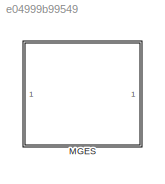
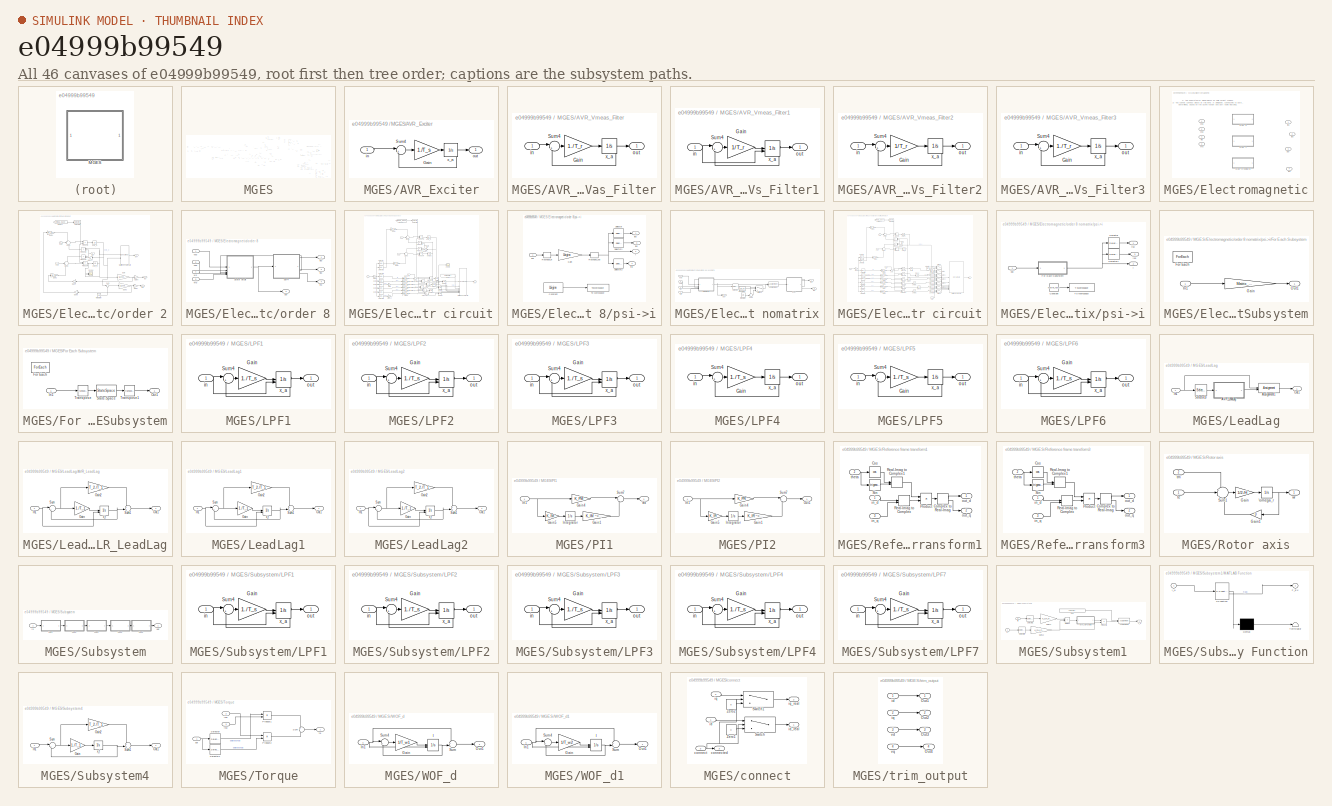
[diagram: thumbnail index - all 46 canvases of the model, root first then tree order]
MODEL slx_e04999b99549
KIND model
CONFIG AbsTol = auto
CONFIG EnableMultiTasking = off
CONFIG FixedStep = auto
CONFIG MaxStep = auto
CONFIG MinStep = auto
CONFIG RelTol = 1e-3
CONFIG SampleTimeConstraint = Unconstrained
CONFIG SolverName = VariableStepAuto
CONFIG StartTime = 0.0
CONFIG StopTime = 10.0
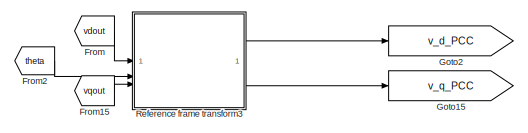
[diagram: MGES - part 1/7, top center region]
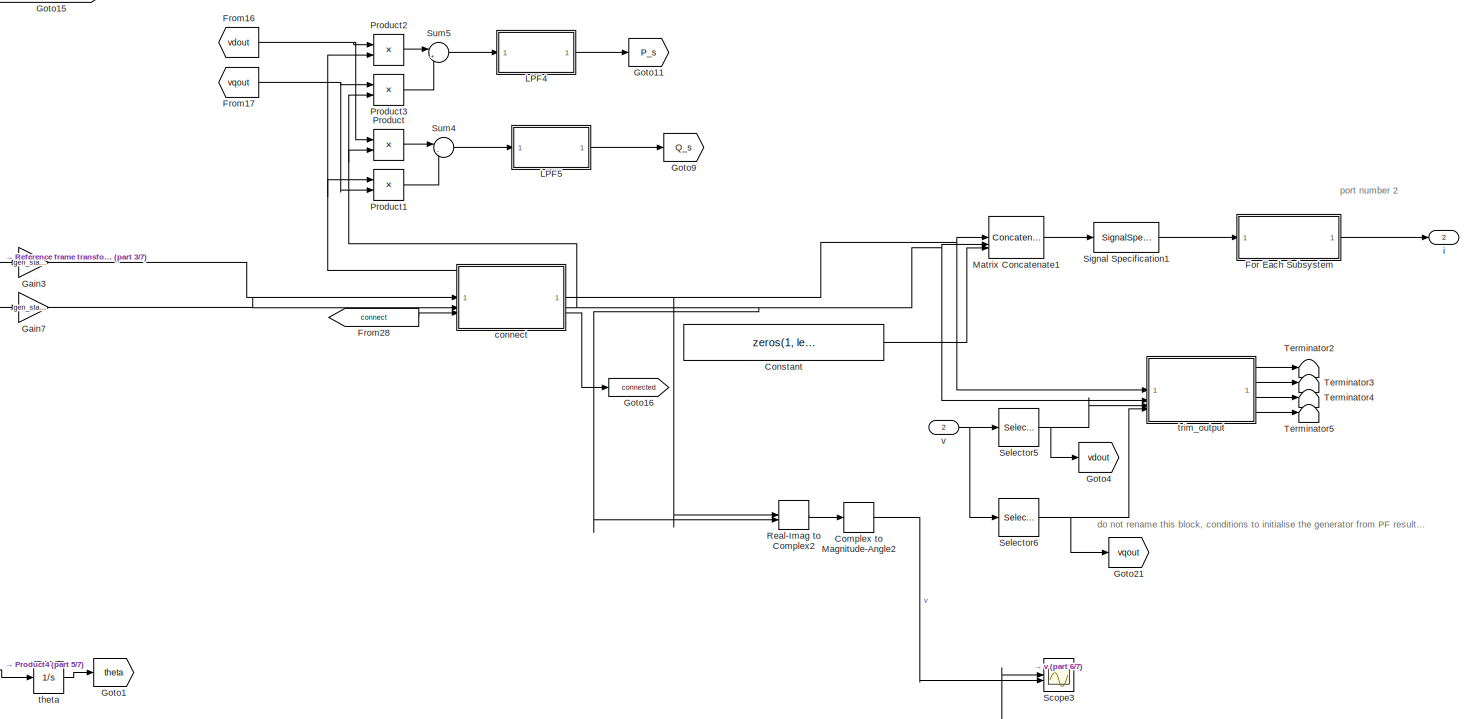
[diagram: MGES - part 2/7, middle right region]
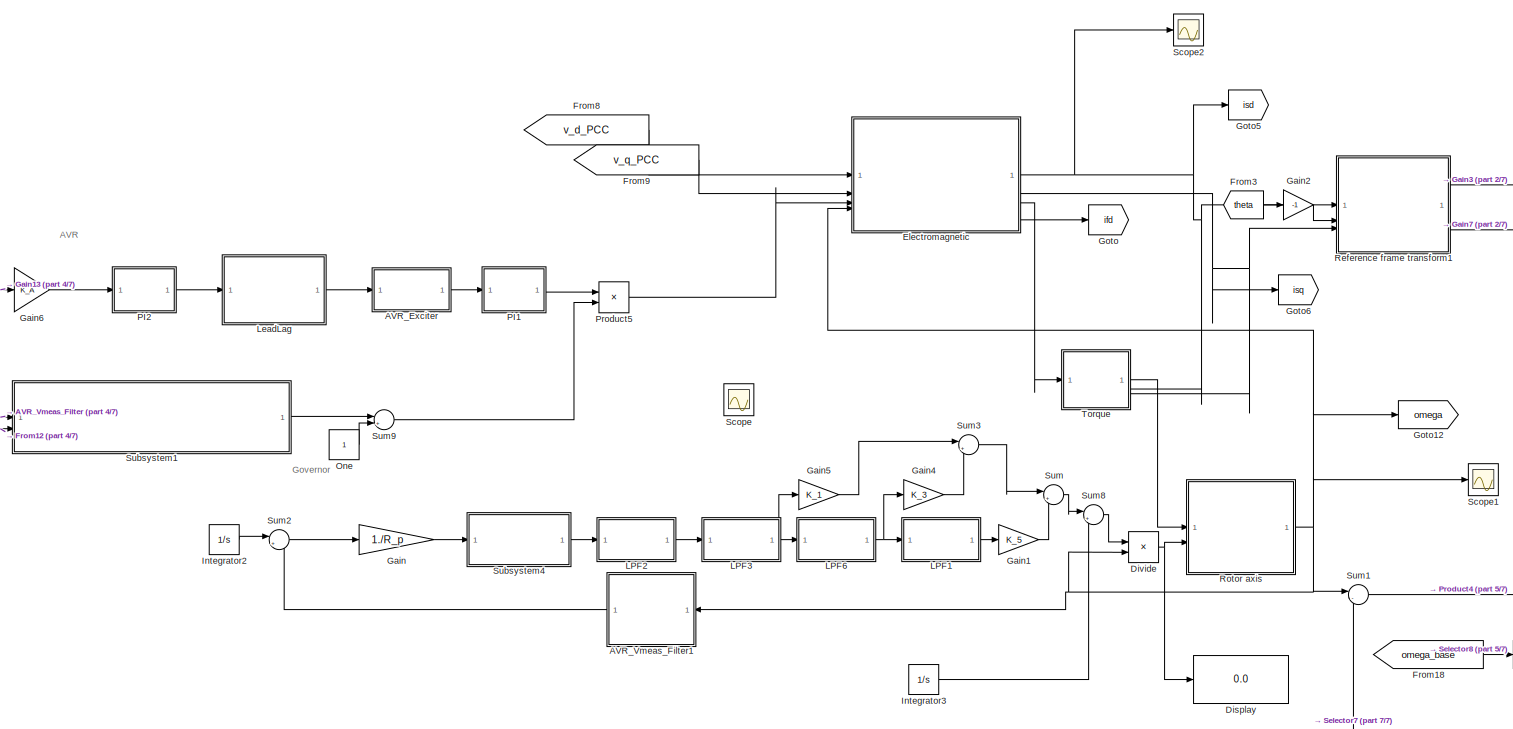
[diagram: MGES - part 3/7, central region]
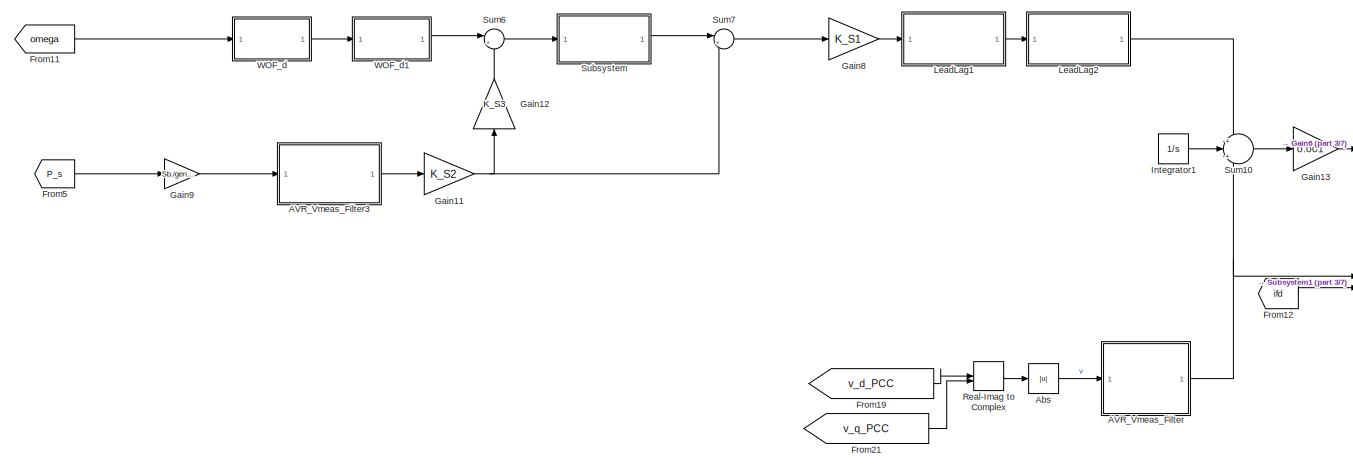
[diagram: MGES - part 4/7, middle left region]
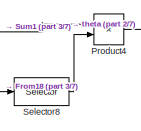
[diagram: MGES - part 5/7, central region]
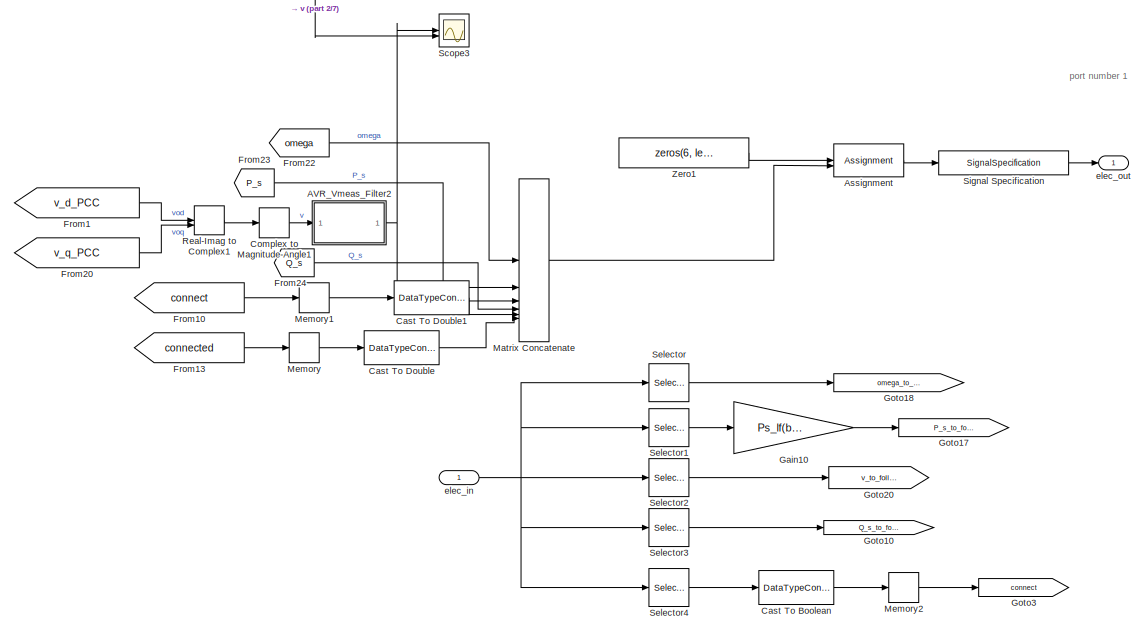
[diagram: MGES - part 6/7, bottom right region]
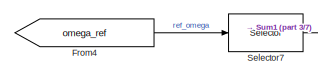
[diagram: MGES - part 7/7, bottom center region]
BLOCK [SubSystem] MGES
  Commented = on
BLOCK [SubSystem] MGES/AVR_Exciter
BLOCK [Gain] MGES/AVR_Exciter/Gain
  Gain = 1./T_s
BLOCK [Sum] MGES/AVR_Exciter/Sum4
  Inputs = |+-
BLOCK [Inport] MGES/AVR_Exciter/in
BLOCK [Outport] MGES/AVR_Exciter/out
BLOCK [Integrator] MGES/AVR_Exciter/x_a
  InitialCondition = Grid_op_MGES.op.States(1).x'
BLOCK [SubSystem] MGES/AVR_Vmeas_Filter
BLOCK [Gain] MGES/AVR_Vmeas_Filter/Gain
  Gain = 1./T_r
BLOCK [Sum] MGES/AVR_Vmeas_Filter/Sum4
  Inputs = |+-
BLOCK [Inport] MGES/AVR_Vmeas_Filter/in
BLOCK [Outport] MGES/AVR_Vmeas_Filter/out
BLOCK [Integrator] MGES/AVR_Vmeas_Filter/x_a
  InitialCondition = Grid_op_MGES.op.States(2).x'
BLOCK [SubSystem] MGES/AVR_Vmeas_Filter1
BLOCK [Gain] MGES/AVR_Vmeas_Filter1/Gain
  Gain = 1/T_r
BLOCK [Sum] MGES/AVR_Vmeas_Filter1/Sum4
  Inputs = |+-
BLOCK [Inport] MGES/AVR_Vmeas_Filter1/in
BLOCK [Outport] MGES/AVR_Vmeas_Filter1/out
BLOCK [Integrator] MGES/AVR_Vmeas_Filter1/x_a
  InitialCondition = Grid_op_MGES.op.States(3).x'
  InitialConditionSource = external
BLOCK [SubSystem] MGES/AVR_Vmeas_Filter2
  Commented = through
BLOCK [Gain] MGES/AVR_Vmeas_Filter2/Gain
  Gain = 1/T_r
BLOCK [Sum] MGES/AVR_Vmeas_Filter2/Sum4
  Inputs = |+-
BLOCK [Inport] MGES/AVR_Vmeas_Filter2/in
BLOCK [Outport] MGES/AVR_Vmeas_Filter2/out
BLOCK [Integrator] MGES/AVR_Vmeas_Filter2/x_a
  InitialCondition = Grid_op_SG.op.States(5).x'
BLOCK [SubSystem] MGES/AVR_Vmeas_Filter3
BLOCK [Gain] MGES/AVR_Vmeas_Filter3/Gain
  Gain = 1./T_r
BLOCK [Sum] MGES/AVR_Vmeas_Filter3/Sum4
  Inputs = |+-
BLOCK [Inport] MGES/AVR_Vmeas_Filter3/in
BLOCK [Outport] MGES/AVR_Vmeas_Filter3/out
BLOCK [Integrator] MGES/AVR_Vmeas_Filter3/x_a
  InitialCondition = Grid_op_MGES.op.States(4).x'
BLOCK [Abs] MGES/Abs
  SaturateOnIntegerOverflow = off
BLOCK [Assignment] MGES/Assignment
  DiagnosticForDimensions = Warning
  IndexOptions = Assign all,Index vector (dialog)
  Indices = 1,block_idx
  NumberOfDimensions = 2
  OutputSizes = 1,1
BLOCK [DataTypeConversion] MGES/Cast To Boolean
  OutDataTypeStr = boolean
  RndMeth = Floor
  SaturateOnIntegerOverflow = off
BLOCK [DataTypeConversion] MGES/Cast To Double
  OutDataTypeStr = double
  RndMeth = Floor
  SaturateOnIntegerOverflow = off
BLOCK [DataTypeConversion] MGES/Cast To Double1
  OutDataTypeStr = double
  RndMeth = Floor
  SaturateOnIntegerOverflow = off
BLOCK [ComplexToMagnitudeAngle] MGES/Complex to Magnitude-Angle1
  Output = Magnitude
BLOCK [ComplexToMagnitudeAngle] MGES/Complex to Magnitude-Angle2
  Output = Magnitude
BLOCK [Constant] MGES/Constant
  Value = zeros(1, length(block_buses))
  VectorParams1D = off
BLOCK [Display] MGES/Display
  Decimation = 1
BLOCK [Product] MGES/Divide
  Inputs = */
BLOCK [SubSystem] MGES/Electromagnetic
  LabelModeActiveChoice = order 8
  Variant = on
  VariantControlMode = label
BLOCK [Outport] MGES/Electromagnetic/ifd
  Port = 4
BLOCK [Outport] MGES/Electromagnetic/isd
BLOCK [Outport] MGES/Electromagnetic/isq
  Port = 2
BLOCK [SubSystem] MGES/Electromagnetic/order 2
  VariantControl = order 2
BLOCK [From] MGES/Electromagnetic/order 2/From14
  GotoTag = omega_base
  TagVisibility = scoped
BLOCK [Gain] MGES/Electromagnetic/order 2/Gain
  Gain = 1./Lssd_pu
BLOCK [Gain] MGES/Electromagnetic/order 2/Gain1
  Gain = Rs_pu
BLOCK [Gain] MGES/Electromagnetic/order 2/Gain17
  Gain = -1
  NameLocation = top
BLOCK [Gain] MGES/Electromagnetic/order 2/Gain2
  Gain = Rs_pu
BLOCK [Gain] MGES/Electromagnetic/order 2/Gain3
  Gain = 1./Lssd_pu
BLOCK [Gain] MGES/Electromagnetic/order 2/Gain4
BLOCK [Gain] MGES/Electromagnetic/order 2/Gain5
BLOCK [Gain] MGES/Electromagnetic/order 2/Gain6
  Gain = -1
BLOCK [Gain] MGES/Electromagnetic/order 2/Gain7
  Gain = -1
BLOCK [Integrator] MGES/Electromagnetic/order 2/Integrator
  InitialCondition = Grid_op_MGES.op.States(5).x'
BLOCK [Concatenate] MGES/Electromagnetic/order 2/Matrix Concatenate
  Mode = Multidimensional array
BLOCK [Product] MGES/Electromagnetic/order 2/Product1
BLOCK [Product] MGES/Electromagnetic/order 2/Product2
BLOCK [Product] MGES/Electromagnetic/order 2/Product3
BLOCK [Product] MGES/Electromagnetic/order 2/Product4
BLOCK [Scope] MGES/Electromagnetic/order 2/Scope
  ActiveDisplayYMaximum = 19.6557
  ActiveDisplayYMinimum = -176.647
  DataLoggingVariableName = ScopeData1
  Floating = off
  GraphicalSettings = {"GraphicalSettings":{"LegacySettings":true,"Style":{"AxesScalingProperties":{"AlignXAxis":"Center","AlignYAxis":"Center","AutoScaleXAxisLimits":true,"AxesScaling":"Manual","AxesScalingNumUpdates":10,"ScaleAxesLimitsAtStop":true,"XAxisDataRange":100,"YAxisDataRange":80},"Style":{"AxesColor":"[0 0 0]","ChannelNames":[""],"ColorOrder":"[1 0.909803921568627 0.392156862745098;0.149019607843137 0.54901...<+675ch>
  LayoutDimensionsString = [1 1]
  MultipleDisplayCache = [{"MaxYLimMag":176.647,"MaxYLimReal":19.6557,"MinYLimMag":0,"MinYLimReal":-176.647,"PlotAsMagnitudePhase":false,"ShowGrid":true,"ShowLegend":true,"Title":"%<SignalLabel>","YLabel":""}]
  NumInputPorts = 2
  ShowLegend = on
  WasSavedAsWebScope = on
  WindowPosition = [1086 283 560 420]
BLOCK [Selector] MGES/Electromagnetic/order 2/Selector2
  IndexOptions = Index vector (dialog)
  Indices = block_fref
  InputPortWidth = length(fref.ref_units)
  OutputSizes = 1
BLOCK [Sum] MGES/Electromagnetic/order 2/Sum
  Inputs = |++
BLOCK [Sum] MGES/Electromagnetic/order 2/Sum1
  InputSameDT = on
  Inputs = -|+|-
  OutDataTypeStr = Inherit: Same as first input
  SaturateOnIntegerOverflow = on
BLOCK [Sum] MGES/Electromagnetic/order 2/Sum2
  InputSameDT = on
  Inputs = -|+|-
  OutDataTypeStr = Inherit: Same as first input
  SaturateOnIntegerOverflow = on
BLOCK [Outport] MGES/Electromagnetic/order 2/isd
  VectorParamsAs1DForOutWhenUnconnected = off
BLOCK [Outport] MGES/Electromagnetic/order 2/isq
  Port = 2
  VectorParamsAs1DForOutWhenUnconnected = off
BLOCK [Outport] MGES/Electromagnetic/order 2/psi
  Port = 3
  VectorParamsAs1DForOutWhenUnconnected = off
BLOCK [Integrator] MGES/Electromagnetic/order 2/psis_d
  InitialCondition = Grid_op_MGES.op.States(6).x'
BLOCK [Integrator] MGES/Electromagnetic/order 2/psis_q
  InitialCondition = Grid_op_MGES.op.States(7).x'
BLOCK [Inport] MGES/Electromagnetic/order 2/vsd
BLOCK [Inport] MGES/Electromagnetic/order 2/vsq
  Port = 2
BLOCK [Inport] MGES/Electromagnetic/order 2/ws
  Port = 3
BLOCK [SubSystem] MGES/Electromagnetic/order 8
  VariantControl = order 8
BLOCK [SubSystem] MGES/Electromagnetic/order 8 nomatrix
  VariantControl = order 1
BLOCK [Assignment] MGES/Electromagnetic/order 8 nomatrix/Assignment
  DiagnosticForDimensions = Warning
  IndexOptions = Index vector (dialog),Assign all
  Indices = 2,1
  NumberOfDimensions = 2
  OutputSizes = 1,1
BLOCK [Constant] MGES/Electromagnetic/order 8 nomatrix/Constant
  Value = Lfd_pu
  VectorParams1D = off
BLOCK [Integrator] MGES/Electromagnetic/order 8 nomatrix/Integrator
  InitialCondition = Grid_op_MGES.op.States(5).x'
BLOCK [Selector] MGES/Electromagnetic/order 8 nomatrix/Selector
  IndexOptions = Index vector (dialog),Select all
  Indices = 2,1
  InputPortWidth = 3
  NumberOfDimensions = 2
  OutputSizes = 1,1
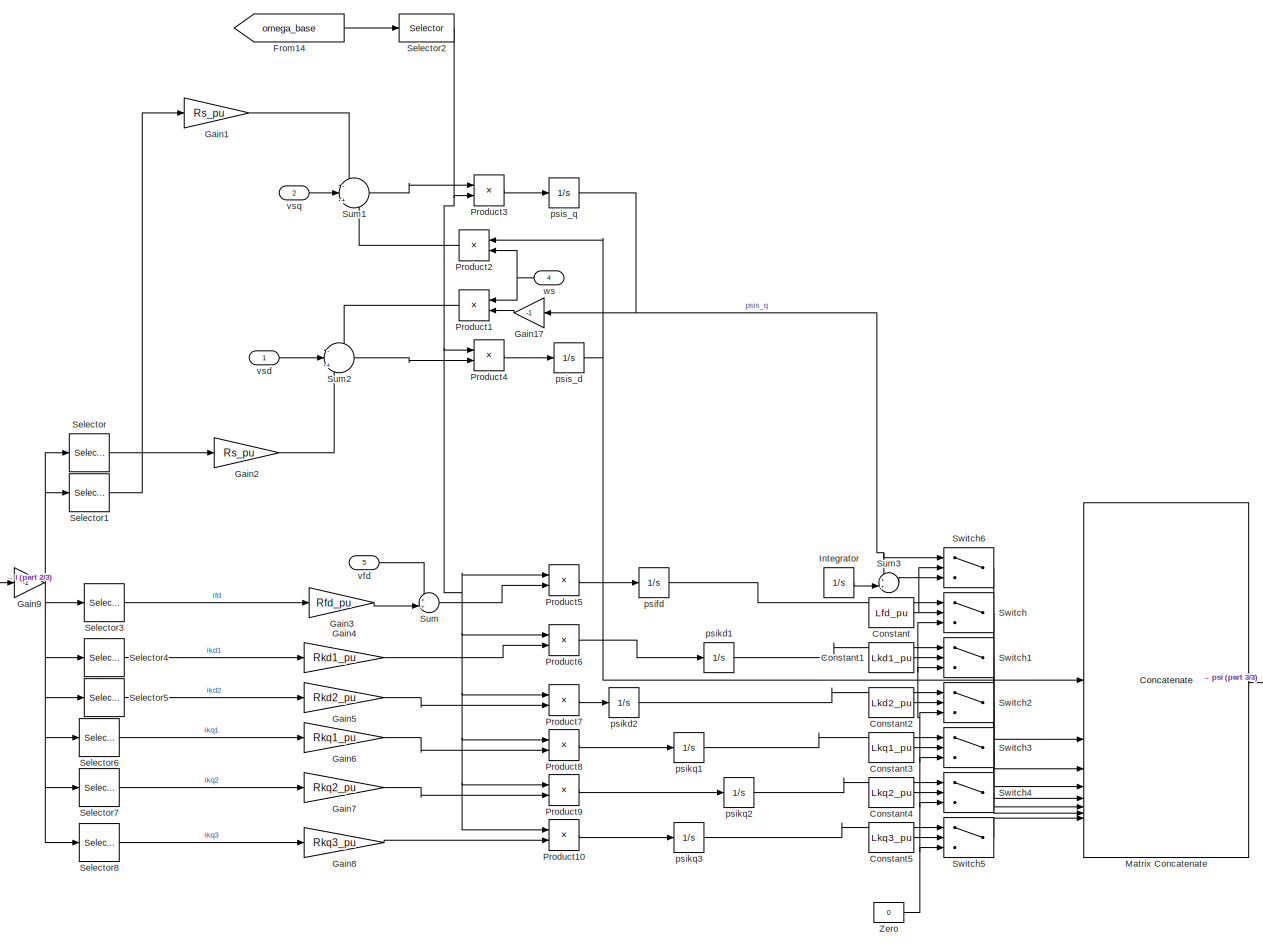
[diagram: MGES/Electromagnetic/order 8 nomatrix/Stator circuit - part 1/3, most of the canvas]
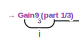
[diagram: MGES/Electromagnetic/order 8 nomatrix/Stator circuit - part 2/3, middle left region]
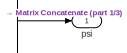
[diagram: MGES/Electromagnetic/order 8 nomatrix/Stator circuit - part 3/3, bottom right region]
BLOCK [SubSystem] MGES/Electromagnetic/order 8 nomatrix/Stator circuit
BLOCK [Constant] MGES/Electromagnetic/order 8 nomatrix/Stator circuit/Constant
  Value = Lfd_pu
  VectorParams1D = off
BLOCK [Constant] MGES/Electromagnetic/order 8 nomatrix/Stator circuit/Constant1
  Value = Lkd1_pu
  VectorParams1D = off
BLOCK [Constant] MGES/Electromagnetic/order 8 nomatrix/Stator circuit/Constant2
  Value = Lkd2_pu
  VectorParams1D = off
BLOCK [Constant] MGES/Electromagnetic/order 8 nomatrix/Stator circuit/Constant3
  Value = Lkq1_pu
  VectorParams1D = off
BLOCK [Constant] MGES/Electromagnetic/order 8 nomatrix/Stator circuit/Constant4
  Value = Lkq2_pu
  VectorParams1D = off
BLOCK [Constant] MGES/Electromagnetic/order 8 nomatrix/Stator circuit/Constant5
  Value = Lkq3_pu
  VectorParams1D = off
BLOCK [From] MGES/Electromagnetic/order 8 nomatrix/Stator circuit/From14
  GotoTag = omega_base
  TagVisibility = scoped
BLOCK [Gain] MGES/Electromagnetic/order 8 nomatrix/Stator circuit/Gain1
  Gain = Rs_pu
BLOCK [Gain] MGES/Electromagnetic/order 8 nomatrix/Stator circuit/Gain17
  Gain = -1
  NameLocation = top
BLOCK [Gain] MGES/Electromagnetic/order 8 nomatrix/Stator circuit/Gain2
  Gain = Rs_pu
BLOCK [Gain] MGES/Electromagnetic/order 8 nomatrix/Stator circuit/Gain3
  Gain = Rfd_pu
BLOCK [Gain] MGES/Electromagnetic/order 8 nomatrix/Stator circuit/Gain4
  Gain = Rkd1_pu
BLOCK [Gain] MGES/Electromagnetic/order 8 nomatrix/Stator circuit/Gain5
  Gain = Rkd2_pu
BLOCK [Gain] MGES/Electromagnetic/order 8 nomatrix/Stator circuit/Gain6
  Gain = Rkq1_pu
BLOCK [Gain] MGES/Electromagnetic/order 8 nomatrix/Stator circuit/Gain7
  Gain = Rkq2_pu
BLOCK [Gain] MGES/Electromagnetic/order 8 nomatrix/Stator circuit/Gain8
  Gain = Rkq3_pu
BLOCK [Gain] MGES/Electromagnetic/order 8 nomatrix/Stator circuit/Gain9
  Gain = -1
BLOCK [Integrator] MGES/Electromagnetic/order 8 nomatrix/Stator circuit/Integrator
  InitialCondition = Grid_op_MGES.op.States(6).x'
BLOCK [Concatenate] MGES/Electromagnetic/order 8 nomatrix/Stator circuit/Matrix Concatenate
  Mode = Multidimensional array
  NumInputs = 8
BLOCK [Product] MGES/Electromagnetic/order 8 nomatrix/Stator circuit/Product1
BLOCK [Product] MGES/Electromagnetic/order 8 nomatrix/Stator circuit/Product10
BLOCK [Product] MGES/Electromagnetic/order 8 nomatrix/Stator circuit/Product2
BLOCK [Product] MGES/Electromagnetic/order 8 nomatrix/Stator circuit/Product3
BLOCK [Product] MGES/Electromagnetic/order 8 nomatrix/Stator circuit/Product4
BLOCK [Product] MGES/Electromagnetic/order 8 nomatrix/Stator circuit/Product5
BLOCK [Product] MGES/Electromagnetic/order 8 nomatrix/Stator circuit/Product6
BLOCK [Product] MGES/Electromagnetic/order 8 nomatrix/Stator circuit/Product7
BLOCK [Product] MGES/Electromagnetic/order 8 nomatrix/Stator circuit/Product8
BLOCK [Product] MGES/Electromagnetic/order 8 nomatrix/Stator circuit/Product9
BLOCK [Selector] MGES/Electromagnetic/order 8 nomatrix/Stator circuit/Selector
  IndexOptions = Index vector (dialog),Select all
  Indices = [1],1
  InputPortWidth = 9
  NumberOfDimensions = 2
  OutputSizes = 1,1
BLOCK [Selector] MGES/Electromagnetic/order 8 nomatrix/Stator circuit/Selector1
  IndexOptions = Index vector (dialog),Select all
  Indices = [2],1
  InputPortWidth = 9
  NumberOfDimensions = 2
  OutputSizes = 1,1
BLOCK [Selector] MGES/Electromagnetic/order 8 nomatrix/Stator circuit/Selector2
  IndexOptions = Index vector (dialog)
  Indices = block_fref
  InputPortWidth = length(fref.ref_units)
  OutputSizes = 1
BLOCK [Selector] MGES/Electromagnetic/order 8 nomatrix/Stator circuit/Selector3
  IndexOptions = Index vector (dialog),Select all
  Indices = 3,1
  InputPortWidth = 9
  NumberOfDimensions = 2
  OutputSizes = 1,1
BLOCK [Selector] MGES/Electromagnetic/order 8 nomatrix/Stator circuit/Selector4
  IndexOptions = Index vector (dialog),Select all
  Indices = 4,1
  InputPortWidth = 9
  NumberOfDimensions = 2
  OutputSizes = 1,1
BLOCK [Selector] MGES/Electromagnetic/order 8 nomatrix/Stator circuit/Selector5
  IndexOptions = Index vector (dialog),Select all
  Indices = 5,1
  InputPortWidth = 9
  NumberOfDimensions = 2
  OutputSizes = 1,1
BLOCK [Selector] MGES/Electromagnetic/order 8 nomatrix/Stator circuit/Selector6
  IndexOptions = Index vector (dialog),Select all
  Indices = 6,1
  InputPortWidth = 9
  NumberOfDimensions = 2
  OutputSizes = 1,1
BLOCK [Selector] MGES/Electromagnetic/order 8 nomatrix/Stator circuit/Selector7
  IndexOptions = Index vector (dialog),Select all
  Indices = 7,1
  InputPortWidth = 9
  NumberOfDimensions = 2
  OutputSizes = 1,1
BLOCK [Selector] MGES/Electromagnetic/order 8 nomatrix/Stator circuit/Selector8
  IndexOptions = Index vector (dialog),Select all
  Indices = 8,1
  InputPortWidth = 9
  NumberOfDimensions = 2
  OutputSizes = 1,1
BLOCK [Sum] MGES/Electromagnetic/order 8 nomatrix/Stator circuit/Sum
  Inputs = ++|
BLOCK [Sum] MGES/Electromagnetic/order 8 nomatrix/Stator circuit/Sum1
  InputSameDT = on
  Inputs = -|+|-
  OutDataTypeStr = Inherit: Same as first input
  SaturateOnIntegerOverflow = on
BLOCK [Sum] MGES/Electromagnetic/order 8 nomatrix/Stator circuit/Sum2
  InputSameDT = on
  Inputs = -|+|-
  OutDataTypeStr = Inherit: Same as first input
  SaturateOnIntegerOverflow = on
BLOCK [Sum] MGES/Electromagnetic/order 8 nomatrix/Stator circuit/Sum3
  Inputs = ++|
BLOCK [Switch] MGES/Electromagnetic/order 8 nomatrix/Stator circuit/Switch
  Criteria = u2 ~= 0
  InputSameDT = off
  SaturateOnIntegerOverflow = off
BLOCK [Switch] MGES/Electromagnetic/order 8 nomatrix/Stator circuit/Switch1
  Criteria = u2 ~= 0
  InputSameDT = off
  SaturateOnIntegerOverflow = off
BLOCK [Switch] MGES/Electromagnetic/order 8 nomatrix/Stator circuit/Switch2
  Criteria = u2 ~= 0
  InputSameDT = off
  SaturateOnIntegerOverflow = off
BLOCK [Switch] MGES/Electromagnetic/order 8 nomatrix/Stator circuit/Switch3
  Criteria = u2 ~= 0
  InputSameDT = off
  SaturateOnIntegerOverflow = off
BLOCK [Switch] MGES/Electromagnetic/order 8 nomatrix/Stator circuit/Switch4
  Criteria = u2 ~= 0
  InputSameDT = off
  SaturateOnIntegerOverflow = off
BLOCK [Switch] MGES/Electromagnetic/order 8 nomatrix/Stator circuit/Switch5
  Criteria = u2 ~= 0
  InputSameDT = off
  SaturateOnIntegerOverflow = off
BLOCK [Switch] MGES/Electromagnetic/order 8 nomatrix/Stator circuit/Switch6
  Criteria = u2 ~= 0
  InputSameDT = off
  SaturateOnIntegerOverflow = off
BLOCK [Constant] MGES/Electromagnetic/order 8 nomatrix/Stator circuit/Zero
  OutDataTypeStr = Inherit: Inherit via back propagation
  Value = 0
BLOCK [Inport] MGES/Electromagnetic/order 8 nomatrix/Stator circuit/i
  Port = 3
BLOCK [Outport] MGES/Electromagnetic/order 8 nomatrix/Stator circuit/psi
  VectorParamsAs1DForOutWhenUnconnected = off
BLOCK [Integrator] MGES/Electromagnetic/order 8 nomatrix/Stator circuit/psifd
  InitialCondition = Grid_op_MGES.op.States(7).x'
BLOCK [Integrator] MGES/Electromagnetic/order 8 nomatrix/Stator circuit/psikd1
  InitialCondition = Grid_op_MGES.op.States(8).x'
BLOCK [Integrator] MGES/Electromagnetic/order 8 nomatrix/Stator circuit/psikd2
  InitialCondition = Grid_op_MGES.op.States(9).x'
BLOCK [Integrator] MGES/Electromagnetic/order 8 nomatrix/Stator circuit/psikq1
  InitialCondition = Grid_op_MGES.op.States(10).x'
BLOCK [Integrator] MGES/Electromagnetic/order 8 nomatrix/Stator circuit/psikq2
  InitialCondition = Grid_op_MGES.op.States(11).x'
BLOCK [Integrator] MGES/Electromagnetic/order 8 nomatrix/Stator circuit/psikq3
  InitialCondition = Grid_op_MGES.op.States(12).x'
BLOCK [Integrator] MGES/Electromagnetic/order 8 nomatrix/Stator circuit/psis_d
  InitialCondition = Grid_op_MGES.op.States(13).x'
BLOCK [Integrator] MGES/Electromagnetic/order 8 nomatrix/Stator circuit/psis_q
  InitialCondition = Grid_op_MGES.op.States(14).x'
BLOCK [Inport] MGES/Electromagnetic/order 8 nomatrix/Stator circuit/vfd
  Port = 5
BLOCK [Inport] MGES/Electromagnetic/order 8 nomatrix/Stator circuit/vsd
BLOCK [Inport] MGES/Electromagnetic/order 8 nomatrix/Stator circuit/vsq
  Port = 2
BLOCK [Inport] MGES/Electromagnetic/order 8 nomatrix/Stator circuit/ws
  Port = 4
BLOCK [Sum] MGES/Electromagnetic/order 8 nomatrix/Sum3
  Inputs = ++|
BLOCK [Switch] MGES/Electromagnetic/order 8 nomatrix/Switch6
  Criteria = u2 ~= 0
  InputSameDT = off
  SaturateOnIntegerOverflow = off
BLOCK [Outport] MGES/Electromagnetic/order 8 nomatrix/isd
BLOCK [Outport] MGES/Electromagnetic/order 8 nomatrix/isq
  Port = 2
BLOCK [Outport] MGES/Electromagnetic/order 8 nomatrix/psi
  Port = 3
BLOCK [SubSystem] MGES/Electromagnetic/order 8 nomatrix/psi->i
BLOCK [Constant] MGES/Electromagnetic/order 8 nomatrix/psi->i/Constant
  Value = Matrix_flux_to_i
BLOCK [SubSystem] MGES/Electromagnetic/order 8 nomatrix/psi->i/For Each Subsystem
  TreatAsAtomicUnit = on
BLOCK [ForEach] MGES/Electromagnetic/order 8 nomatrix/psi->i/For Each Subsystem/For Each
  DisableCoverage = on
  IterateSubsysMaskParameter = on
  SubsysMaskParameterIterationDimension = 3
BLOCK [Gain] MGES/Electromagnetic/order 8 nomatrix/psi->i/For Each Subsystem/Gain
  Gain = Matrix_flux_to_i
  Multiplication = Matrix(K*u)
BLOCK [Inport] MGES/Electromagnetic/order 8 nomatrix/psi->i/For Each Subsystem/In1
  Partition = on
  PartitionDimension = 2
  PartitionOffset = 0
  PartitionWidth = 1
BLOCK [Outport] MGES/Electromagnetic/order 8 nomatrix/psi->i/For Each Subsystem/Out1
  ConcatenationDimension = 2
BLOCK [Selector] MGES/Electromagnetic/order 8 nomatrix/psi->i/Selector
  IndexOptions = Index vector (dialog),Select all
  Indices = [1],1
  InputPortWidth = 9
  NumberOfDimensions = 2
  OutputSizes = 1,1
BLOCK [Selector] MGES/Electromagnetic/order 8 nomatrix/psi->i/Selector1
  IndexOptions = Index vector (dialog),Select all
  Indices = [2],1
  InputPortWidth = 9
  NumberOfDimensions = 2
  OutputSizes = 1,1
BLOCK [ToWorkspace] MGES/Electromagnetic/order 8 nomatrix/psi->i/To Workspace
  FixptAsFi = on
  MaxDataPoints = inf
  SampleTime = -1
  SaveFormat = Timeseries
  VariableName = Matrix_flux_to_i
BLOCK [Outport] MGES/Electromagnetic/order 8 nomatrix/psi->i/i
  Port = 2
  VectorParamsAs1DForOutWhenUnconnected = off
BLOCK [Outport] MGES/Electromagnetic/order 8 nomatrix/psi->i/isd
  VectorParamsAs1DForOutWhenUnconnected = off
BLOCK [Outport] MGES/Electromagnetic/order 8 nomatrix/psi->i/isq
  Port = 3
  VectorParamsAs1DForOutWhenUnconnected = off
BLOCK [Inport] MGES/Electromagnetic/order 8 nomatrix/psi->i/psi
BLOCK [Inport] MGES/Electromagnetic/order 8 nomatrix/vfd
  Port = 3
BLOCK [Inport] MGES/Electromagnetic/order 8 nomatrix/vsd
BLOCK [Inport] MGES/Electromagnetic/order 8 nomatrix/vsq
  Port = 2
BLOCK [Inport] MGES/Electromagnetic/order 8 nomatrix/ws
  Port = 4
BLOCK [SubSystem] MGES/Electromagnetic/order 8/Stator circuit
BLOCK [From] MGES/Electromagnetic/order 8/Stator circuit/From14
  GotoTag = omega_base
  TagVisibility = scoped
BLOCK [Gain] MGES/Electromagnetic/order 8/Stator circuit/Gain
  Gain = (Rkd2_pu < 1e3)
BLOCK [Gain] MGES/Electromagnetic/order 8/Stator circuit/Gain1
  Gain = Rs_pu
BLOCK [Gain] MGES/Electromagnetic/order 8/Stator circuit/Gain10
  Gain = (Rkq3_pu < 1e3)
BLOCK [Gain] MGES/Electromagnetic/order 8/Stator circuit/Gain17
  Gain = -1
  NameLocation = top
BLOCK [Gain] MGES/Electromagnetic/order 8/Stator circuit/Gain2
  Gain = Rs_pu
BLOCK [Gain] MGES/Electromagnetic/order 8/Stator circuit/Gain3
  Gain = Rfd_pu
BLOCK [Gain] MGES/Electromagnetic/order 8/Stator circuit/Gain4
  Gain = Rkd1_pu
BLOCK [Gain] MGES/Electromagnetic/order 8/Stator circuit/Gain5
  Gain = Rkd2_pu
BLOCK [Gain] MGES/Electromagnetic/order 8/Stator circuit/Gain6
  Gain = Rkq1_pu
BLOCK [Gain] MGES/Electromagnetic/order 8/Stator circuit/Gain7
  Gain = Rkq2_pu
BLOCK [Gain] MGES/Electromagnetic/order 8/Stator circuit/Gain8
  Gain = Rkq3_pu
BLOCK [Gain] MGES/Electromagnetic/order 8/Stator circuit/Gain9
  Gain = -1
BLOCK [Concatenate] MGES/Electromagnetic/order 8/Stator circuit/Matrix Concatenate
  Mode = Multidimensional array
  NumInputs = 9
BLOCK [Product] MGES/Electromagnetic/order 8/Stator circuit/Product1
BLOCK [Product] MGES/Electromagnetic/order 8/Stator circuit/Product10
BLOCK [Product] MGES/Electromagnetic/order 8/Stator circuit/Product2
BLOCK [Product] MGES/Electromagnetic/order 8/Stator circuit/Product3
BLOCK [Product] MGES/Electromagnetic/order 8/Stator circuit/Product4
BLOCK [Product] MGES/Electromagnetic/order 8/Stator circuit/Product5
BLOCK [Product] MGES/Electromagnetic/order 8/Stator circuit/Product6
BLOCK [Product] MGES/Electromagnetic/order 8/Stator circuit/Product7
BLOCK [Product] MGES/Electromagnetic/order 8/Stator circuit/Product8
BLOCK [Product] MGES/Electromagnetic/order 8/Stator circuit/Product9
BLOCK [Scope] MGES/Electromagnetic/order 8/Stator circuit/Scope
  ActiveDisplayYMaximum = 1
  ActiveDisplayYMinimum = -1
  DataLoggingVariableName = ScopeData14
  Floating = off
  GraphicalSettings = {"Style":{"BackgroundColor":[0.12941176470588237,0.12941176470588237,0.12941176470588237],"AxesColor":[0.07058823529411765,0.07058823529411765,0.07058823529411765],"LabelsColor":[0.8509803921568627,0.8509803921568627,0.8509803921568627],"PreserveColors":false,"Visible":[true,true,true],"LineStyle":["-","-","-"],"LineWidth":[1.5,1.5,1.5],"BarWidth":[0.9,0.9,0.9],"LineColor":["auto","auto","auto"],"...<+2137ch>
  MultipleDisplayCache = [{"MaxYLimMag":1,"MaxYLimReal":1,"MinYLimMag":0,"MinYLimReal":-1,"PlotAsMagnitudePhase":false,"ShowGrid":true,"ShowLegend":false,"Title":"%<SignalLabel>","YLabel":""}]
  NumInputPorts = 1
  ScopeFrameLocation = window
  WasSavedAsWebScope = on
  WindowPosition = [1096.000000,366.000000,560.000000,420.000000,]
BLOCK [Selector] MGES/Electromagnetic/order 8/Stator circuit/Selector
  IndexOptions = Index vector (dialog),Select all
  Indices = [1],1
  InputPortWidth = 9
  NumberOfDimensions = 2
  OutputSizes = 1,1
BLOCK [Selector] MGES/Electromagnetic/order 8/Stator circuit/Selector1
  IndexOptions = Index vector (dialog),Select all
  Indices = [2],1
  InputPortWidth = 9
  NumberOfDimensions = 2
  OutputSizes = 1,1
BLOCK [Selector] MGES/Electromagnetic/order 8/Stator circuit/Selector2
  IndexOptions = Index vector (dialog)
  Indices = block_fref
  InputPortWidth = length(fref.ref_units)
  OutputSizes = 1
BLOCK [Selector] MGES/Electromagnetic/order 8/Stator circuit/Selector3
  IndexOptions = Index vector (dialog),Select all
  Indices = [4],1
  InputPortWidth = 9
  NumberOfDimensions = 2
  OutputSizes = 1,1
BLOCK [Selector] MGES/Electromagnetic/order 8/Stator circuit/Selector4
  IndexOptions = Index vector (dialog),Select all
  Indices = [5],1
  InputPortWidth = 9
  NumberOfDimensions = 2
  OutputSizes = 1,1
BLOCK [Selector] MGES/Electromagnetic/order 8/Stator circuit/Selector5
  IndexOptions = Index vector (dialog),Select all
  Indices = [6],1
  InputPortWidth = 9
  NumberOfDimensions = 2
  OutputSizes = 1,1
BLOCK [Selector] MGES/Electromagnetic/order 8/Stator circuit/Selector6
  IndexOptions = Index vector (dialog),Select all
  Indices = [7],1
  InputPortWidth = 9
  NumberOfDimensions = 2
  OutputSizes = 1,1
BLOCK [Selector] MGES/Electromagnetic/order 8/Stator circuit/Selector7
  IndexOptions = Index vector (dialog),Select all
  Indices = [8],1
  InputPortWidth = 9
  NumberOfDimensions = 2
  OutputSizes = 1,1
BLOCK [Selector] MGES/Electromagnetic/order 8/Stator circuit/Selector8
  IndexOptions = Index vector (dialog),Select all
  Indices = [9],1
  InputPortWidth = 9
  NumberOfDimensions = 2
  OutputSizes = 1,1
BLOCK [Sum] MGES/Electromagnetic/order 8/Stator circuit/Sum
  Inputs = ++|
BLOCK [Sum] MGES/Electromagnetic/order 8/Stator circuit/Sum1
  InputSameDT = on
  Inputs = -|+|-
  OutDataTypeStr = Inherit: Same as first input
  SaturateOnIntegerOverflow = on
BLOCK [Sum] MGES/Electromagnetic/order 8/Stator circuit/Sum2
  InputSameDT = on
  Inputs = -|+|-
  OutDataTypeStr = Inherit: Same as first input
  SaturateOnIntegerOverflow = on
BLOCK [Constant] MGES/Electromagnetic/order 8/Stator circuit/Zero2
  OutDataTypeStr = Inherit: Inherit via back propagation
  Value = zeros(1, length(block_buses))
  VectorParams1D = off
BLOCK [Inport] MGES/Electromagnetic/order 8/Stator circuit/i
  Port = 3
BLOCK [Outport] MGES/Electromagnetic/order 8/Stator circuit/psi
  VectorParamsAs1DForOutWhenUnconnected = off
BLOCK [Integrator] MGES/Electromagnetic/order 8/Stator circuit/psifd
  InitialCondition = Grid_op_MGES.op.States(5).x'
BLOCK [Integrator] MGES/Electromagnetic/order 8/Stator circuit/psikd1
  InitialCondition = Grid_op_MGES.op.States(6).x'
BLOCK [Integrator] MGES/Electromagnetic/order 8/Stator circuit/psikd2
  InitialCondition = Grid_op_MGES.op.States(7).x'
BLOCK [Integrator] MGES/Electromagnetic/order 8/Stator circuit/psikq1
  InitialCondition = Grid_op_MGES.op.States(8).x'
BLOCK [Integrator] MGES/Electromagnetic/order 8/Stator circuit/psikq2
  InitialCondition = Grid_op_MGES.op.States(9).x'
BLOCK [Integrator] MGES/Electromagnetic/order 8/Stator circuit/psikq3
  InitialCondition = Grid_op_MGES.op.States(10).x'
BLOCK [Integrator] MGES/Electromagnetic/order 8/Stator circuit/psis_d
  InitialCondition = Grid_op_MGES.op.States(11).x'
BLOCK [Integrator] MGES/Electromagnetic/order 8/Stator circuit/psis_q
  InitialCondition = Grid_op_MGES.op.States(12).x'
BLOCK [Inport] MGES/Electromagnetic/order 8/Stator circuit/vfd
  Port = 5
BLOCK [Inport] MGES/Electromagnetic/order 8/Stator circuit/vsd
BLOCK [Inport] MGES/Electromagnetic/order 8/Stator circuit/vsq
  Port = 2
BLOCK [Inport] MGES/Electromagnetic/order 8/Stator circuit/ws
  Port = 4
BLOCK [Outport] MGES/Electromagnetic/order 8/ifd
  Port = 4
BLOCK [Outport] MGES/Electromagnetic/order 8/isd
BLOCK [Outport] MGES/Electromagnetic/order 8/isq
  Port = 2
BLOCK [Outport] MGES/Electromagnetic/order 8/psi
  Port = 3
BLOCK [SubSystem] MGES/Electromagnetic/order 8/psi->i
BLOCK [Constant] MGES/Electromagnetic/order 8/psi->i/Constant
  Value = Lbiginv
BLOCK [Gain] MGES/Electromagnetic/order 8/psi->i/Gain
  Gain = Lbiginv
  Multiplication = Matrix(K*u)
BLOCK [Reshape] MGES/Electromagnetic/order 8/psi->i/Reshape_in
  OutputDimensionality = Column vector (2-D)
BLOCK [Reshape] MGES/Electromagnetic/order 8/psi->i/Reshape_out
  OutputDimensionality = Customize
  OutputDimensions = [9, length(block_buses)]
BLOCK [Selector] MGES/Electromagnetic/order 8/psi->i/Selector
  IndexOptions = Index vector (dialog),Select all
  Indices = [1],1
  InputPortWidth = 9
  NumberOfDimensions = 2
  OutputSizes = 1,1
BLOCK [Selector] MGES/Electromagnetic/order 8/psi->i/Selector1
  IndexOptions = Index vector (dialog),Select all
  Indices = [2],1
  InputPortWidth = 9
  NumberOfDimensions = 2
  OutputSizes = 1,1
BLOCK [Selector] MGES/Electromagnetic/order 8/psi->i/Selector2
  IndexOptions = Index vector (dialog),Select all
  Indices = 4,1
  InputPortWidth = 9
  NumberOfDimensions = 2
  OutputSizes = 1,1
BLOCK [ToWorkspace] MGES/Electromagnetic/order 8/psi->i/To Workspace
  FixptAsFi = on
  MaxDataPoints = inf
  SampleTime = -1
  SaveFormat = Timeseries
  VariableName = Lbiginverse
BLOCK [Outport] MGES/Electromagnetic/order 8/psi->i/i
  Port = 2
  VectorParamsAs1DForOutWhenUnconnected = off
BLOCK [Outport] MGES/Electromagnetic/order 8/psi->i/ifd
  Port = 4
  VectorParamsAs1DForOutWhenUnconnected = off
BLOCK [Outport] MGES/Electromagnetic/order 8/psi->i/isd
  VectorParamsAs1DForOutWhenUnconnected = off
BLOCK [Outport] MGES/Electromagnetic/order 8/psi->i/isq
  Port = 3
  VectorParamsAs1DForOutWhenUnconnected = off
BLOCK [Inport] MGES/Electromagnetic/order 8/psi->i/psi
BLOCK [Inport] MGES/Electromagnetic/order 8/vfd
  Port = 3
BLOCK [Inport] MGES/Electromagnetic/order 8/vsd
BLOCK [Inport] MGES/Electromagnetic/order 8/vsq
  Port = 2
BLOCK [Inport] MGES/Electromagnetic/order 8/ws
  Port = 4
BLOCK [Outport] MGES/Electromagnetic/psi
  Port = 3
BLOCK [Inport] MGES/Electromagnetic/vfd
  Port = 3
BLOCK [Inport] MGES/Electromagnetic/vsd
BLOCK [Inport] MGES/Electromagnetic/vsq
  Port = 2
BLOCK [Inport] MGES/Electromagnetic/ws
  Port = 4
BLOCK [SubSystem] MGES/For Each Subsystem
  TreatAsAtomicUnit = on
BLOCK [ForEach] MGES/For Each Subsystem/For Each
  DisableCoverage = on
BLOCK [Inport] MGES/For Each Subsystem/In1
  Partition = on
  PartitionDimension = 1
  PartitionOffset = 0
  PartitionWidth = 1
BLOCK [Outport] MGES/For Each Subsystem/Out1
  ConcatenationDimension = 1
BLOCK [StateSpace] MGES/For Each Subsystem/State-Space
  A = []
  B = []
  C = []
  D = block_toM
  InitialCondition = 0
  ParameterTunability = Optimized
BLOCK [Math] MGES/For Each Subsystem/Transpose
  Operator = transpose
BLOCK [Math] MGES/For Each Subsystem/Transpose1
  Operator = transpose
BLOCK [From] MGES/From
  GotoTag = vdout
BLOCK [From] MGES/From1
  GotoTag = v_d_PCC
BLOCK [From] MGES/From10
  GotoTag = connect
BLOCK [From] MGES/From11
  GotoTag = omega
BLOCK [From] MGES/From12
  GotoTag = ifd
BLOCK [From] MGES/From13
  GotoTag = connected
BLOCK [From] MGES/From15
  GotoTag = vqout
BLOCK [From] MGES/From16
  GotoTag = vdout
BLOCK [From] MGES/From17
  GotoTag = vqout
BLOCK [From] MGES/From18
  GotoTag = omega_base
  TagVisibility = scoped
BLOCK [From] MGES/From19
  GotoTag = v_d_PCC
BLOCK [From] MGES/From2
  GotoTag = theta
BLOCK [From] MGES/From20
  GotoTag = v_q_PCC
BLOCK [From] MGES/From21
  GotoTag = v_q_PCC
BLOCK [From] MGES/From22
  GotoTag = omega
BLOCK [From] MGES/From23
  GotoTag = P_s
BLOCK [From] MGES/From24
  GotoTag = Q_s
BLOCK [From] MGES/From28
  GotoTag = connect
BLOCK [From] MGES/From3
  GotoTag = theta
BLOCK [From] MGES/From4
  GotoTag = omega_ref
  TagVisibility = scoped
BLOCK [From] MGES/From5
  GotoTag = P_s
BLOCK [From] MGES/From8
  GotoTag = v_d_PCC
BLOCK [From] MGES/From9
  GotoTag = v_q_PCC
BLOCK [Gain] MGES/Gain
  Gain = 1./R_p
BLOCK [Gain] MGES/Gain1
  Gain = K_5
BLOCK [Gain] MGES/Gain10
  Gain = Ps_lf(block_idx)
BLOCK [Gain] MGES/Gain11
  Gain = K_S2
BLOCK [Gain] MGES/Gain12
  Gain = K_S3
  NameLocation = right
BLOCK [Gain] MGES/Gain13
  Gain = 0.001
BLOCK [Gain] MGES/Gain2
  Gain = -1
BLOCK [Gain] MGES/Gain3
  Gain = gen_static_params.mBase(block_idx)'./Sb
BLOCK [Gain] MGES/Gain4
  Gain = K_3
  NameLocation = top
BLOCK [Gain] MGES/Gain5
  Gain = K_1
BLOCK [Gain] MGES/Gain6
  Gain = K_A
BLOCK [Gain] MGES/Gain7
  Gain = gen_static_params.mBase(block_idx)'./Sb
BLOCK [Gain] MGES/Gain8
  Gain = K_S1
BLOCK [Gain] MGES/Gain9
  Gain = Sb./gen_static_params.mBase(block_idx)'
BLOCK [Goto] MGES/Goto
  GotoTag = ifd
BLOCK [Goto] MGES/Goto1
  GotoTag = theta
BLOCK [Goto] MGES/Goto10
  GotoTag = Q_s_to_follow_own
BLOCK [Goto] MGES/Goto11
  GotoTag = P_s
BLOCK [Goto] MGES/Goto12
  GotoTag = omega
BLOCK [Goto] MGES/Goto15
  GotoTag = v_q_PCC
BLOCK [Goto] MGES/Goto16
  GotoTag = connected
BLOCK [Goto] MGES/Goto17
  GotoTag = P_s_to_follow_own
BLOCK [Goto] MGES/Goto18
  GotoTag = omega_to_follow_own
BLOCK [Goto] MGES/Goto2
  GotoTag = v_d_PCC
BLOCK [Goto] MGES/Goto20
  GotoTag = v_to_follow_own
BLOCK [Goto] MGES/Goto21
  GotoTag = vqout
BLOCK [Goto] MGES/Goto3
  GotoTag = connect
BLOCK [Goto] MGES/Goto4
  GotoTag = vdout
BLOCK [Goto] MGES/Goto5
  GotoTag = isd
BLOCK [Goto] MGES/Goto6
  GotoTag = isq
BLOCK [Goto] MGES/Goto9
  GotoTag = Q_s
BLOCK [Integrator] MGES/Integrator1
  InitialCondition = Grid_op_MGES.op.States(13).x'
BLOCK [Integrator] MGES/Integrator2
  InitialCondition = Grid_op_MGES.op.States(14).x'
BLOCK [Integrator] MGES/Integrator3
  InitialCondition = Grid_op_MGES.op.States(15).x'
BLOCK [SubSystem] MGES/LPF1
BLOCK [Gain] MGES/LPF1/Gain
  Gain = 1./T_s
BLOCK [Sum] MGES/LPF1/Sum4
  Inputs = |+-
BLOCK [Inport] MGES/LPF1/in
BLOCK [Outport] MGES/LPF1/out
BLOCK [Integrator] MGES/LPF1/x_a
  InitialCondition = Grid_op_MGES.op.States(16).x'
  InitialConditionSource = external
BLOCK [SubSystem] MGES/LPF2
BLOCK [Gain] MGES/LPF2/Gain
  Gain = 1./T_s
BLOCK [Sum] MGES/LPF2/Sum4
  Inputs = |+-
BLOCK [Inport] MGES/LPF2/in
BLOCK [Outport] MGES/LPF2/out
BLOCK [Integrator] MGES/LPF2/x_a
  InitialCondition = Grid_op_MGES.op.States(17).x'
  InitialConditionSource = external
BLOCK [SubSystem] MGES/LPF3
BLOCK [Gain] MGES/LPF3/Gain
  Gain = 1./T_s
BLOCK [Sum] MGES/LPF3/Sum4
  Inputs = |+-
BLOCK [Inport] MGES/LPF3/in
BLOCK [Outport] MGES/LPF3/out
BLOCK [Integrator] MGES/LPF3/x_a
  InitialCondition = Grid_op_MGES.op.States(18).x'
  InitialConditionSource = external
BLOCK [SubSystem] MGES/LPF4
  Commented = through
BLOCK [Gain] MGES/LPF4/Gain
  Gain = 1./T_s
BLOCK [Sum] MGES/LPF4/Sum4
  Inputs = |+-
BLOCK [Inport] MGES/LPF4/in
BLOCK [Outport] MGES/LPF4/out
BLOCK [Integrator] MGES/LPF4/x_a
  InitialCondition = Grid_op_SG.op.States(10).x'
BLOCK [SubSystem] MGES/LPF5
  Commented = through
BLOCK [Gain] MGES/LPF5/Gain
  Gain = 1./T_s
BLOCK [Sum] MGES/LPF5/Sum4
  Inputs = |+-
BLOCK [Inport] MGES/LPF5/in
BLOCK [Outport] MGES/LPF5/out
BLOCK [Integrator] MGES/LPF5/x_a
  InitialCondition = Grid_op_SG.op.States(11).x'
BLOCK [SubSystem] MGES/LPF6
BLOCK [Gain] MGES/LPF6/Gain
  Gain = 1./T_s
BLOCK [Sum] MGES/LPF6/Sum4
  Inputs = |+-
BLOCK [Inport] MGES/LPF6/in
BLOCK [Outport] MGES/LPF6/out
BLOCK [Integrator] MGES/LPF6/x_a
  InitialCondition = Grid_op_MGES.op.States(19).x'
  InitialConditionSource = external
BLOCK [SubSystem] MGES/LeadLag
BLOCK [SubSystem] MGES/LeadLag/AVR_LeadLag
BLOCK [Gain] MGES/LeadLag/AVR_LeadLag/Gain
  Gain = 1./T_1
BLOCK [Gain] MGES/LeadLag/AVR_LeadLag/Gain2
  Gain = T_2./T_1
BLOCK [Inport] MGES/LeadLag/AVR_LeadLag/In1
BLOCK [Outport] MGES/LeadLag/AVR_LeadLag/Out1
BLOCK [Sum] MGES/LeadLag/AVR_LeadLag/Sum
  Inputs = |+-
BLOCK [Sum] MGES/LeadLag/AVR_LeadLag/Sum1
  Inputs = ++|
BLOCK [Integrator] MGES/LeadLag/AVR_LeadLag/x_f
  InitialCondition = Grid_op_MGES.op.States(20).x'
  InitialConditionSource = external
BLOCK [Assignment] MGES/LeadLag/Assignment1
  DiagnosticForDimensions = Warning
  IndexOptions = Index vector (dialog)
  Indices = find(T_1~=0)
  OutputSizes = 1
BLOCK [Inport] MGES/LeadLag/In1
BLOCK [Outport] MGES/LeadLag/Out1
BLOCK [Selector] MGES/LeadLag/Selector10
  IndexOptions = Index vector (dialog)
  Indices = find(T_1~=0)
  InputPortWidth = length(block_buses)
  OutputSizes = 1
BLOCK [SubSystem] MGES/LeadLag1
BLOCK [Gain] MGES/LeadLag1/Gain
  Gain = 1./T_1
BLOCK [Gain] MGES/LeadLag1/Gain2
  Gain = T_2./T_1
BLOCK [Inport] MGES/LeadLag1/In1
BLOCK [Outport] MGES/LeadLag1/Out1
BLOCK [Sum] MGES/LeadLag1/Sum
  Inputs = |+-
BLOCK [Sum] MGES/LeadLag1/Sum1
  Inputs = ++|
BLOCK [Integrator] MGES/LeadLag1/x_f
  InitialCondition = Grid_op_MGES.op.States(21).x'
  InitialConditionSource = external
BLOCK [SubSystem] MGES/LeadLag2
BLOCK [Gain] MGES/LeadLag2/Gain
  Gain = 1./T_1
BLOCK [Gain] MGES/LeadLag2/Gain2
  Gain = T_2./T_1
BLOCK [Inport] MGES/LeadLag2/In1
BLOCK [Outport] MGES/LeadLag2/Out1
BLOCK [Sum] MGES/LeadLag2/Sum
  Inputs = |+-
BLOCK [Sum] MGES/LeadLag2/Sum1
  Inputs = ++|
BLOCK [Integrator] MGES/LeadLag2/x_f
  InitialCondition = Grid_op_MGES.op.States(22).x'
  InitialConditionSource = external
BLOCK [Concatenate] MGES/Matrix Concatenate
  Mode = Multidimensional array
  NumInputs = 6
BLOCK [Concatenate] MGES/Matrix Concatenate1
  Mode = Multidimensional array
  NumInputs = 3
BLOCK [Memory] MGES/Memory
  InitialCondition = 1
BLOCK [Memory] MGES/Memory1
  InitialCondition = 1
BLOCK [Memory] MGES/Memory2
  InitialCondition = 1
BLOCK [Constant] MGES/One
  OutDataTypeStr = Inherit: Inherit via back propagation
BLOCK [SubSystem] MGES/PI1
BLOCK [Gain] MGES/PI1/Gain1
  Gain = K_IM ~= 0
BLOCK [Gain] MGES/PI1/Gain4
  Gain = K_PM
BLOCK [Gain] MGES/PI1/Gain5
  Gain = K_IM
BLOCK [Inport] MGES/PI1/In1
BLOCK [Integrator] MGES/PI1/Integrator
  InitialCondition = Grid_op_MGES.op.States(23).x'
BLOCK [Sum] MGES/PI1/Sum7
  Inputs = |++
BLOCK [Outport] MGES/PI1/vfd
BLOCK [SubSystem] MGES/PI2
BLOCK [Gain] MGES/PI2/Gain1
  Gain = K_IR ~= 0
BLOCK [Gain] MGES/PI2/Gain4
  Gain = K_PR
BLOCK [Gain] MGES/PI2/Gain5
  Gain = K_IR
BLOCK [Inport] MGES/PI2/In1
BLOCK [Integrator] MGES/PI2/Integrator
  InitialCondition = Grid_op_MGES.op.States(24).x'
BLOCK [Outport] MGES/PI2/Out1
BLOCK [Sum] MGES/PI2/Sum7
  Inputs = |++
BLOCK [Product] MGES/Product
BLOCK [Product] MGES/Product1
BLOCK [Product] MGES/Product2
BLOCK [Product] MGES/Product3
BLOCK [Product] MGES/Product4
BLOCK [Product] MGES/Product5
BLOCK [RealImagToComplex] MGES/Real-Imag to Complex
BLOCK [RealImagToComplex] MGES/Real-Imag to Complex1
BLOCK [RealImagToComplex] MGES/Real-Imag to Complex2
BLOCK [SubSystem] MGES/Reference frame transform1
BLOCK [ComplexToRealImag] MGES/Reference frame transform1/Complex to Real-Imag
BLOCK [Trigonometry] MGES/Reference frame transform1/Cos
  Operator = cos
  SCDEnableBlockLinearizationSpecification = on
BLOCK [Product] MGES/Reference frame transform1/Product
BLOCK [RealImagToComplex] MGES/Reference frame transform1/Real-Imag to Complex
BLOCK [RealImagToComplex] MGES/Reference frame transform1/Real-Imag to Complex1
BLOCK [Trigonometry] MGES/Reference frame transform1/Sin
  SCDEnableBlockLinearizationSpecification = on
BLOCK [Inport] MGES/Reference frame transform1/in_d
BLOCK [Inport] MGES/Reference frame transform1/in_q
  Port = 3
BLOCK [Outport] MGES/Reference frame transform1/out_d
BLOCK [Outport] MGES/Reference frame transform1/out_q
  Port = 2
BLOCK [Inport] MGES/Reference frame transform1/theta
  Port = 2
BLOCK [SubSystem] MGES/Reference frame transform3
BLOCK [ComplexToRealImag] MGES/Reference frame transform3/Complex to Real-Imag
BLOCK [Trigonometry] MGES/Reference frame transform3/Cos
  Operator = cos
  SCDEnableBlockLinearizationSpecification = on
BLOCK [Product] MGES/Reference frame transform3/Product
BLOCK [RealImagToComplex] MGES/Reference frame transform3/Real-Imag to Complex
BLOCK [RealImagToComplex] MGES/Reference frame transform3/Real-Imag to Complex1
BLOCK [Trigonometry] MGES/Reference frame transform3/Sin
  SCDEnableBlockLinearizationSpecification = on
BLOCK [Inport] MGES/Reference frame transform3/in_d
BLOCK [Inport] MGES/Reference frame transform3/in_q
  Port = 3
BLOCK [Outport] MGES/Reference frame transform3/out_d
BLOCK [Outport] MGES/Reference frame transform3/out_q
  Port = 2
BLOCK [Inport] MGES/Reference frame transform3/theta
  Port = 2
BLOCK [SubSystem] MGES/Rotor axis
BLOCK [Gain] MGES/Rotor axis/Gain
  Gain = 1/2./H
BLOCK [Gain] MGES/Rotor axis/Gain1
  Gain = D
BLOCK [Sum] MGES/Rotor axis/Sum1
  InputSameDT = on
  Inputs = +|-|-
  OutDataTypeStr = Inherit: Same as first input
  SaturateOnIntegerOverflow = on
BLOCK [Integrator] MGES/Rotor axis/\omega_r
  InitialCondition = Grid_op_MGES.op.States(25).x'
  LowerSaturationLimit = 0
  UpperSaturationLimit = 2*pi
BLOCK [Inport] MGES/Rotor axis/te
BLOCK [Inport] MGES/Rotor axis/tm
  Port = 2
BLOCK [Outport] MGES/Rotor axis/wr
  VectorParamsAs1DForOutWhenUnconnected = off
BLOCK [Scope] MGES/Scope
  ActiveDisplayYMaximum = 1
  ActiveDisplayYMinimum = -1
  DataLoggingVariableName = ScopeData13
  Floating = off
  GraphicalSettings = {"Style":{"BackgroundColor":[0.12941176470588237,0.12941176470588237,0.12941176470588237],"AxesColor":[0.07058823529411765,0.07058823529411765,0.07058823529411765],"LabelsColor":[0.8509803921568627,0.8509803921568627,0.8509803921568627],"PreserveColors":false,"Visible":[true,true,true],"LineStyle":["-","-","-"],"LineWidth":[1.5,1.5,1.5],"BarWidth":[0.9,0.9,0.9],"LineColor":["auto","auto","auto"],"...<+2143ch>
  MultipleDisplayCache = [{"MaxYLimMag":1,"MaxYLimReal":1,"MinYLimMag":0,"MinYLimReal":-1,"PlotAsMagnitudePhase":false,"ShowGrid":true,"ShowLegend":false,"Title":"%<SignalLabel>","YLabel":""}]
  NumInputPorts = 1
  ScopeFrameLocation = window
  WasSavedAsWebScope = on
  WindowPosition = [667.000000,351.000000,560.000000,420.000000,]
BLOCK [Scope] MGES/Scope1
  ActiveDisplayYMaximum = 2.1702525958532117
  ActiveDisplayYMinimum = -0.058141408811601208
  DataLoggingVariableName = ScopeData3
  Floating = off
  GraphicalSettings = {"Style":{"BackgroundColor":[0.12941176470588237,0.12941176470588237,0.12941176470588237],"AxesColor":[0.07058823529411765,0.07058823529411765,0.07058823529411765],"LabelsColor":[0.8509803921568627,0.8509803921568627,0.8509803921568627],"PreserveColors":false,"Visible":[true,true,true],"LineStyle":["-","-","-"],"LineWidth":[1.5,1.5,1.5],"BarWidth":[0.9,0.9,0.9],"LineColor":["auto","auto","auto"],"...<+2261ch>
  LayoutDimensionsString = [1 1]
  MultipleDisplayCache = [{"MaxYLimMag":2.1702525958532117,"MaxYLimReal":2.1702525958532117,"MinYLimMag":0,"MinYLimReal":-0.058141408811601208,"PlotAsMagnitudePhase":false,"ShowGrid":true,"ShowLegend":false,"Title":"%<SignalLabel>","YLabel":""}]
  NumInputPorts = 1
  ScopeFrameLocation = window
  WasSavedAsWebScope = on
  WindowPosition = [1011.000000,284.000000,560.000000,420.000000,]
BLOCK [Scope] MGES/Scope2
  ActiveDisplayYMaximum = 1.3038964261892889
  ActiveDisplayYMinimum = -0.402690614368146
  DataLoggingVariableName = ScopeData9
  Floating = off
  GraphicalSettings = {"Style":{"BackgroundColor":[0.12941176470588237,0.12941176470588237,0.12941176470588237],"AxesColor":[0.07058823529411765,0.07058823529411765,0.07058823529411765],"LabelsColor":[0.8509803921568627,0.8509803921568627,0.8509803921568627],"PreserveColors":false,"Visible":[true,true,true],"LineStyle":["-","-","-"],"LineWidth":[1.5,1.5,1.5],"BarWidth":[0.9,0.9,0.9],"LineColor":["auto","auto","auto"],"...<+2294ch>
  MultipleDisplayCache = [{"MaxYLimMag":1.3038964261892889,"MaxYLimReal":1.3038964261892889,"MinYLimMag":0,"MinYLimReal":-0.402690614368146,"PlotAsMagnitudePhase":false,"ShowGrid":true,"ShowLegend":false,"Title":"%<SignalLabel>","YLabel":""}]
  NumInputPorts = 1
  ScopeFrameLocation = window
  WasSavedAsWebScope = on
  WindowPosition = [604.000000,219.000000,560.000000,420.000000,]
BLOCK [Scope] MGES/Scope3
  ActiveDisplayYMaximum = 1.9416
  ActiveDisplayYMinimum = 0.29123
  DataLoggingVariableName = ScopeData3
  Floating = off
  GraphicalSettings = {"GraphicalSettings":{"LegacySettings":true,"Style":{"AxesScalingProperties":{"AlignXAxis":"Center","AlignYAxis":"Center","AutoScaleXAxisLimits":true,"AxesScaling":"Manual","AxesScalingNumUpdates":10,"ScaleAxesLimitsAtStop":true,"XAxisDataRange":100,"YAxisDataRange":80},"Style":{"AxesColor":"[0 0 0]","ChannelNames":[""],"ColorOrder":"[1 0.909803921568627 0.392156862745098;0.149019607843137 0.54901...<+675ch>
  LayoutDimensionsString = [1 1]
  MultipleDisplayCache = [{"MaxYLimMag":1.9416,"MaxYLimReal":1.9416,"MinYLimMag":0.29123,"MinYLimReal":0.29123,"PlotAsMagnitudePhase":false,"ShowGrid":true,"ShowLegend":false,"Title":"%<SignalLabel>","YLabel":""}]
  NumInputPorts = 2
  WasSavedAsWebScope = on
  WindowPosition = [705 226 560 420]
BLOCK [Selector] MGES/Selector
  IndexOptions = Index vector (dialog),Index vector (dialog)
  Indices = 1,block_idx
  InputPortWidth = 3
  NumberOfDimensions = 2
  OutputSizes = 1,1
BLOCK [Selector] MGES/Selector1
  IndexOptions = Index vector (dialog),Index vector (dialog)
  Indices = 2,block_idx
  InputPortWidth = 3
  NumberOfDimensions = 2
  OutputSizes = 1,1
BLOCK [Selector] MGES/Selector2
  IndexOptions = Index vector (dialog),Index vector (dialog)
  Indices = 3,block_idx
  InputPortWidth = 3
  NumberOfDimensions = 2
  OutputSizes = 1,1
BLOCK [Selector] MGES/Selector3
  IndexOptions = Index vector (dialog),Index vector (dialog)
  Indices = 4,block_idx
  InputPortWidth = 3
  NumberOfDimensions = 2
  OutputSizes = 1,1
BLOCK [Selector] MGES/Selector4
  IndexOptions = Index vector (dialog),Index vector (dialog)
  Indices = 5,block_idx
  InputPortWidth = 3
  NumberOfDimensions = 2
  OutputSizes = 1,1
BLOCK [Selector] MGES/Selector5
  IndexOptions = Index vector (dialog),Index vector (dialog)
  Indices = 1,block_buses
  InputPortWidth = 3
  NumberOfDimensions = 2
  OutputSizes = 1,1
BLOCK [Selector] MGES/Selector6
  IndexOptions = Index vector (dialog),Index vector (dialog)
  Indices = 2,block_buses
  InputPortWidth = 3
  NumberOfDimensions = 2
  OutputSizes = 1,1
BLOCK [Selector] MGES/Selector7
  IndexOptions = Index vector (dialog)
  Indices = block_fref
  InputPortWidth = length(fref.ref_units)
  OutputSizes = 1
BLOCK [Selector] MGES/Selector8
  IndexOptions = Index vector (dialog)
  Indices = block_fref
  InputPortWidth = length(fref.ref_units)
  OutputSizes = 1
BLOCK [SignalSpecification] MGES/Signal Specification
  Dimensions = [6 length(buses_lf)]
BLOCK [SignalSpecification] MGES/Signal Specification1
  Dimensions = [3 length(block_buses)]
BLOCK [SubSystem] MGES/Subsystem
BLOCK [SubSystem] MGES/Subsystem/LPF1
BLOCK [Gain] MGES/Subsystem/LPF1/Gain
  Gain = 1./T_s
BLOCK [Sum] MGES/Subsystem/LPF1/Sum4
  Inputs = |+-
BLOCK [Inport] MGES/Subsystem/LPF1/in
BLOCK [Outport] MGES/Subsystem/LPF1/out
BLOCK [Integrator] MGES/Subsystem/LPF1/x_a
  InitialCondition = Grid_op_MGES.op.States(26).x'
  InitialConditionSource = external
BLOCK [SubSystem] MGES/Subsystem/LPF2
BLOCK [Gain] MGES/Subsystem/LPF2/Gain
  Gain = 1./T_s
BLOCK [Sum] MGES/Subsystem/LPF2/Sum4
  Inputs = |+-
BLOCK [Inport] MGES/Subsystem/LPF2/in
BLOCK [Outport] MGES/Subsystem/LPF2/out
BLOCK [Integrator] MGES/Subsystem/LPF2/x_a
  InitialCondition = Grid_op_MGES.op.States(27).x'
  InitialConditionSource = external
BLOCK [SubSystem] MGES/Subsystem/LPF3
BLOCK [Gain] MGES/Subsystem/LPF3/Gain
  Gain = 1./T_s
BLOCK [Sum] MGES/Subsystem/LPF3/Sum4
  Inputs = |+-
BLOCK [Inport] MGES/Subsystem/LPF3/in
BLOCK [Outport] MGES/Subsystem/LPF3/out
BLOCK [Integrator] MGES/Subsystem/LPF3/x_a
  InitialCondition = Grid_op_MGES.op.States(28).x'
  InitialConditionSource = external
BLOCK [SubSystem] MGES/Subsystem/LPF4
BLOCK [Gain] MGES/Subsystem/LPF4/Gain
  Gain = 1./T_s
BLOCK [Sum] MGES/Subsystem/LPF4/Sum4
  Inputs = |+-
BLOCK [Inport] MGES/Subsystem/LPF4/in
BLOCK [Outport] MGES/Subsystem/LPF4/out
BLOCK [Integrator] MGES/Subsystem/LPF4/x_a
  InitialCondition = Grid_op_MGES.op.States(29).x'
  InitialConditionSource = external
BLOCK [SubSystem] MGES/Subsystem/LPF7
BLOCK [Gain] MGES/Subsystem/LPF7/Gain
  Gain = 1./T_s
BLOCK [Sum] MGES/Subsystem/LPF7/Sum4
  Inputs = |+-
BLOCK [Inport] MGES/Subsystem/LPF7/in
BLOCK [Outport] MGES/Subsystem/LPF7/out
BLOCK [Integrator] MGES/Subsystem/LPF7/x_a
  InitialCondition = Grid_op_MGES.op.States(30).x'
  InitialConditionSource = external
BLOCK [Inport] MGES/Subsystem/in
BLOCK [Outport] MGES/Subsystem/out
BLOCK [SubSystem] MGES/Subsystem1
  Commented = on
BLOCK [Assignment] MGES/Subsystem1/Assignment1
  DiagnosticForDimensions = Warning
  IndexOptions = Index vector (dialog)
  Indices = find(K_P~=0)
  OutputSizes = 1
BLOCK [Product] MGES/Subsystem1/Divide1
  Inputs = */
BLOCK [Gain] MGES/Subsystem1/Gain11
  Gain = K_C(K_P~=0)
BLOCK [Gain] MGES/Subsystem1/Gain12
  Gain = K_P(K_P~=0)
BLOCK [SubSystem] MGES/Subsystem1/MATLAB Function
  ErrorFcn = Stateflow.Translate.translate
  PermitHierarchicalResolution = ExplicitOnly
  SFBlockType = MATLAB Function
  TreatAsAtomicUnit = on
BLOCK [Demux] MGES/Subsystem1/MATLAB Function/ Demux 
  Outputs = 1
BLOCK [S-Function] MGES/Subsystem1/MATLAB Function/ SFunction 
  EnableBusSupport = off
  FunctionName = sf_sfun
  PortCounts = [1 2]
  SFcnIsStateOwnerBlock = off
  SFunctionDeploymentMode = off
  Tag = Stateflow S-Function 7
BLOCK [Terminator] MGES/Subsystem1/MATLAB Function/ Terminator 
BLOCK [Outport] MGES/Subsystem1/MATLAB Function/F_EX
BLOCK [Inport] MGES/Subsystem1/MATLAB Function/I_N
BLOCK [Constant] MGES/Subsystem1/One
  OutDataTypeStr = Inherit: Inherit via back propagation
  Value = zeros(1, length(block_buses))
  VectorParams1D = off
BLOCK [Product] MGES/Subsystem1/Product5
BLOCK [Selector] MGES/Subsystem1/Selector1
  IndexOptions = Index vector (dialog)
  Indices = find(K_P~=0)
  InputPortWidth = length(block_buses)
  OutputSizes = 1
BLOCK [Selector] MGES/Subsystem1/Selector9
  IndexOptions = Index vector (dialog)
  Indices = find(K_P~=0)
  InputPortWidth = length(block_buses)
  OutputSizes = 1
BLOCK [Outport] MGES/Subsystem1/V_B
BLOCK [Inport] MGES/Subsystem1/ifd
  Port = 2
BLOCK [Inport] MGES/Subsystem1/vt
BLOCK [SubSystem] MGES/Subsystem4
  Commented = through
BLOCK [Gain] MGES/Subsystem4/Gain
  Gain = 1./T_1
BLOCK [Gain] MGES/Subsystem4/Gain2
  Gain = T_2./T_1
BLOCK [Inport] MGES/Subsystem4/In1
BLOCK [Outport] MGES/Subsystem4/Out1
BLOCK [Sum] MGES/Subsystem4/Sum
  Inputs = |+-
BLOCK [Sum] MGES/Subsystem4/Sum1
  Inputs = ++|
BLOCK [Integrator] MGES/Subsystem4/x_f
  InitialCondition = Grid_op_MGES.op.States(21).x'
BLOCK [Sum] MGES/Sum
  Inputs = |++
BLOCK [Sum] MGES/Sum1
  Inputs = |-+
BLOCK [Sum] MGES/Sum10
  Inputs = +|+|-
BLOCK [Sum] MGES/Sum2
  Inputs = |+-
BLOCK [Sum] MGES/Sum3
  Inputs = |++
BLOCK [Sum] MGES/Sum4
  Inputs = |-+
BLOCK [Sum] MGES/Sum5
  Inputs = |++
BLOCK [Sum] MGES/Sum6
  Inputs = |++
BLOCK [Sum] MGES/Sum7
  Inputs = |+-
BLOCK [Sum] MGES/Sum8
  Inputs = |++
BLOCK [Sum] MGES/Sum9
  Inputs = |++
BLOCK [Terminator] MGES/Terminator2
BLOCK [Terminator] MGES/Terminator3
BLOCK [Terminator] MGES/Terminator4
BLOCK [Terminator] MGES/Terminator5
BLOCK [SubSystem] MGES/Torque
  PortSchema = {"entries":[{"content":{"sides":[{"content":{"connectorIds":["In1"]},"type":"ConnectorPlacement.EquallySpacedRectSide","uuid":"b7abd3bc-22dd-4669-aa40-98bc76884565"},{"content":{"connectorIds":["In2","In3","Out1"],"side":"RIGHT"},"type":"ConnectorPlacement.EquallySpacedRectSide","uuid":"e9abb552-b46d-48ed-aa1f-0e9dac604fea"},{"content":{"connectorIds":[],"side":"TOP"},"type":"ConnectorPlacement.Eq...<+252ch>
BLOCK [Product] MGES/Torque/Product1
BLOCK [Product] MGES/Torque/Product2
BLOCK [Selector] MGES/Torque/Selector
  IndexOptions = Index vector (dialog),Select all
  Indices = [1],1
  InputPortWidth = 9
  NumberOfDimensions = 2
  OutputSizes = 1,1
BLOCK [Selector] MGES/Torque/Selector1
  IndexOptions = Index vector (dialog),Select all
  Indices = [2],1
  InputPortWidth = 9
  NumberOfDimensions = 2
  OutputSizes = 1,1
BLOCK [Sum] MGES/Torque/Sum
  Inputs = +||-
BLOCK [Inport] MGES/Torque/isd
  Port = 2
BLOCK [Inport] MGES/Torque/isq
  Port = 3
BLOCK [Inport] MGES/Torque/psi
BLOCK [Outport] MGES/Torque/te
  VectorParamsAs1DForOutWhenUnconnected = off
BLOCK [SubSystem] MGES/WOF_d
BLOCK [Gain] MGES/WOF_d/Gain
  Gain = 1/T_w1
BLOCK [Integrator] MGES/WOF_d/I
  InitialCondition = Grid_op_MGES.op.States(31).x'
  InitialConditionSource = external
BLOCK [Inport] MGES/WOF_d/In1
BLOCK [Outport] MGES/WOF_d/Out1
BLOCK [Sum] MGES/WOF_d/Sum
  Inputs = +-|
BLOCK [Sum] MGES/WOF_d/Sum4
  Inputs = |+-
BLOCK [SubSystem] MGES/WOF_d1
BLOCK [Gain] MGES/WOF_d1/Gain
  Gain = 1/T_w2
BLOCK [Integrator] MGES/WOF_d1/I
  InitialCondition = Grid_op_MGES.op.States(32).x'
  InitialConditionSource = external
BLOCK [Inport] MGES/WOF_d1/In1
BLOCK [Outport] MGES/WOF_d1/Out1
BLOCK [Sum] MGES/WOF_d1/Sum
  Inputs = +-|
BLOCK [Sum] MGES/WOF_d1/Sum4
  Inputs = |+-
BLOCK [Constant] MGES/Zero1
  OutDataTypeStr = Inherit: Inherit via back propagation
  Value = zeros(6, length(buses_lf))
  VectorParams1D = off
BLOCK [SubSystem] MGES/connect
BLOCK [Switch] MGES/connect/Switch
  Criteria = u2 > Threshold
  InputSameDT = off
  SaturateOnIntegerOverflow = off
  ZeroCross = off
BLOCK [Switch] MGES/connect/Switch1
  Criteria = u2 > Threshold
  InputSameDT = off
  SaturateOnIntegerOverflow = off
  ZeroCross = off
BLOCK [Constant] MGES/connect/Zero1
  OutDataTypeStr = Inherit: Inherit via back propagation
  Value = 0
  VectorParams1D = off
BLOCK [Constant] MGES/connect/Zero2
  OutDataTypeStr = Inherit: Inherit via back propagation
  Value = 0
  VectorParams1D = off
BLOCK [Inport] MGES/connect/connect
  Port = 3
BLOCK [Outport] MGES/connect/connected
  OutDataTypeStr = boolean
  Port = 3
BLOCK [Inport] MGES/connect/id
BLOCK [Outport] MGES/connect/id_real
BLOCK [Inport] MGES/connect/iq
  Port = 2
BLOCK [Outport] MGES/connect/iq_real
  Port = 2
BLOCK [Inport] MGES/elec_in
BLOCK [Outport] MGES/elec_out
BLOCK [Outport] MGES/i
  Port = 2
BLOCK [Integrator] MGES/theta
  InitialCondition = Grid_op_MGES.op.States(33).x'
  LowerSaturationLimit = 0
  UpperSaturationLimit = 2*pi
BLOCK [SubSystem] MGES/trim_output
BLOCK [Outport] MGES/trim_output/Out1
BLOCK [Outport] MGES/trim_output/Out2
  Port = 2
BLOCK [Outport] MGES/trim_output/Out3
  Port = 3
BLOCK [Outport] MGES/trim_output/Out4
  Port = 4
BLOCK [Inport] MGES/trim_output/id
BLOCK [Inport] MGES/trim_output/iq
  Port = 2
BLOCK [Inport] MGES/trim_output/vd
  Port = 3
BLOCK [Inport] MGES/trim_output/vq
  Port = 4
BLOCK [Inport] MGES/v
  Port = 2
ANNOTATION MGES: AVR
ANNOTATION MGES: Governor
ANNOTATION MGES: do not rename this block, conditions to initialise the generator from PF result are set on this block's output
ANNOTATION MGES: port number 1
ANNOTATION MGES: port number 2
ANNOTATION MGES/Electromagnetic: 1) Add Subsystem or Model blocks as valid variant choices. 2) You cannot connect blocks at this level. At simulation, connectivity is automatically determined, based on the active variant and port name matching.
CHART MGES/Subsystem1/MATLAB Function states=1 transitions=1
  STATE_LABEL 'eML_blk_kernel()'
  STATE_LABEL 'SCRIPT:\nfunction F_EX = fcn_vectorised(I_N)\n% This function calculates F_EX based on the value of I_N, element-wise.\n% I_N can be a scalar, vector, or matrix.\n\nF_EX = zeros(1, length(I_N)); % Initialize F_EX with zeros, same size as I_N\n\n% Condition 1: I_N <= 0.433\nidx1 = (I_N <= 0.433);\nF_EX(idx1) = 1 - 0.577 * I_N(idx1);\n\n% Condition 2: 0.433 < I_N <= 0.75\nidx2 = (I_N > 0.433) & (I_N <= 0.75);\nF...<+360ch>'
CHART  states=0 transitions=0
